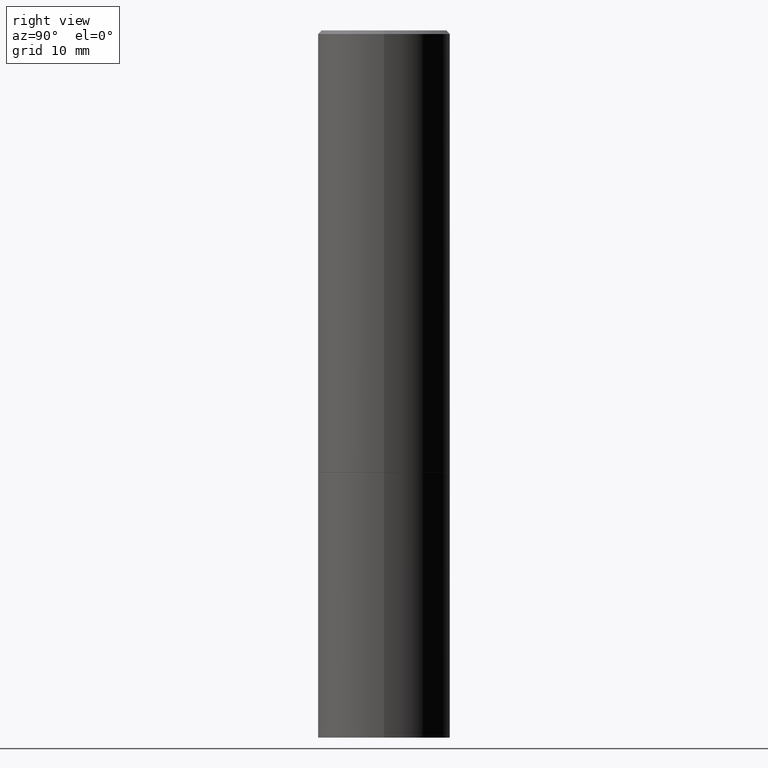
[diagram: clean part render]
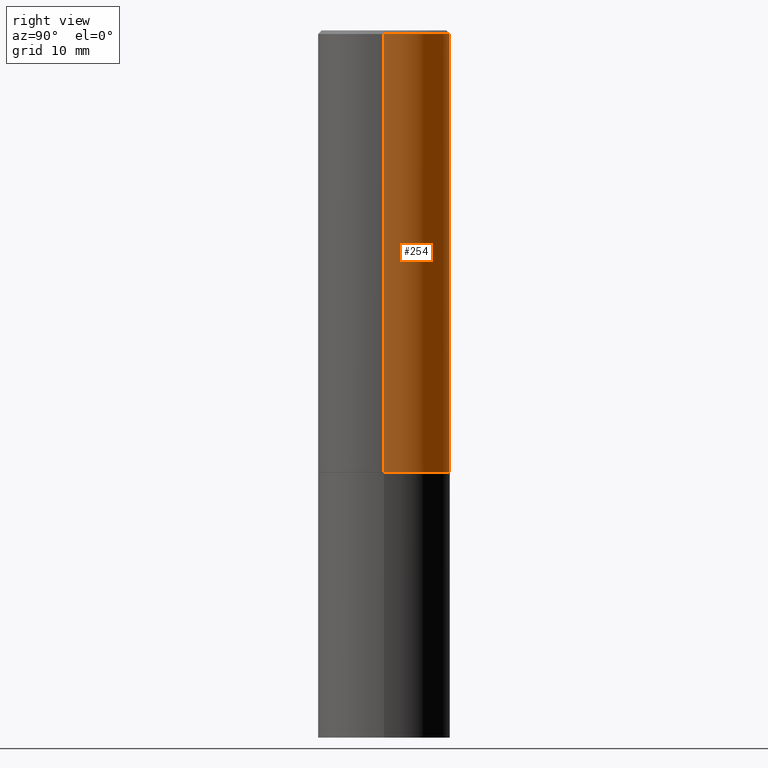
[diagram: same view with one face highlighted and labeled with its STEP entity id]
A machine part, right view. The second image highlights one B-rep face of the part: STEP entity #254.
In plain terms, the highlighted cylindrical surface (partial cylindrical patch) has radius 9.525 mm, axis along (-0, 0, 1).
Its self-contained STEP definition (entity closure, byte-faithful):
#4 = CARTESIAN_POINT ( 'NONE',  ( -0.3749999999999999445, -1.732985487172566723E-15, -2.499000000000000998 ) ) ;
#7 = DIRECTION ( 'NONE',  ( -2.445468806185136597E-29, 3.491481338843145583E-15, 1.000000000000000000 ) ) ;
#9 = EDGE_CURVE ( 'NONE', #67, #296, #132, .T. ) ;
#15 = VECTOR ( 'NONE', #269, 39.37007874015748143 ) ;
#37 = CIRCLE ( 'NONE', #226, 0.3750000000000000555 ) ;
#38 = VERTEX_POINT ( 'NONE', #202 ) ;
#40 = ORIENTED_EDGE ( 'NONE', *, *, #329, .F. ) ;
#57 = CIRCLE ( 'NONE', #107, 0.3749999999999996669 ) ;
#67 = VERTEX_POINT ( 'NONE', #4 ) ;
#79 = DIRECTION ( 'NONE',  ( 1.000000000000000000, -6.982962677686266711E-15, 0.000000000000000000 ) ) ;
#85 = DIRECTION ( 'NONE',  ( -2.445468806185136877E-29, 3.491481338843145188E-15, 1.000000000000000000 ) ) ;
#95 = ORIENTED_EDGE ( 'NONE', *, *, #9, .T. ) ;
#105 = DIRECTION ( 'NONE',  ( 1.000000000000000000, -6.982962677686264344E-15, 0.000000000000000000 ) ) ;
#107 = AXIS2_PLACEMENT_3D ( 'NONE', #163, #139, #79 ) ;
#109 = LINE ( 'NONE', #165, #15 ) ;
#132 = LINE ( 'NONE', #299, #137 ) ;
#137 = VECTOR ( 'NONE', #85, 39.37007874015748143 ) ;
#139 = DIRECTION ( 'NONE',  ( -2.445468806185136597E-29, 3.491481338843145583E-15, 1.000000000000000000 ) ) ;
#150 = CARTESIAN_POINT ( 'NONE',  ( 0.000000000000000000, 0.000000000000000000, 0.000000000000000000 ) ) ;
#154 = CARTESIAN_POINT ( 'NONE',  ( 0.3749999999999996669, -2.642516375941185662E-15, -0.02000000000000007674 ) ) ;
#163 = CARTESIAN_POINT ( 'NONE',  ( 4.890937612370292426E-31, -6.982962677686317493E-17, -0.02000000000000007674 ) ) ;
#165 = CARTESIAN_POINT ( 'NONE',  ( 0.3749999999999998335, -2.618611004132348439E-15, 1.828566290923475082E-29 ) ) ;
#181 = FACE_OUTER_BOUND ( 'NONE', #237, .T. ) ;
#192 = CARTESIAN_POINT ( 'NONE',  ( 6.111226546656659252E-29, -8.725211865769023513E-15, -2.499000000000000998 ) ) ;
#202 = CARTESIAN_POINT ( 'NONE',  ( 0.3750000000000000555, -1.134382286990137353E-14, -2.499000000000000998 ) ) ;
#215 = VERTEX_POINT ( 'NONE', #154 ) ;
#226 = AXIS2_PLACEMENT_3D ( 'NONE', #192, #246, #105 ) ;
#237 = EDGE_LOOP ( 'NONE', ( #366, #95, #289, #40 ) ) ;
#242 = DIRECTION ( 'NONE',  ( 1.000000000000000000, -6.982962677686265922E-15, 4.876176775795935793E-29 ) ) ;
#244 = AXIS2_PLACEMENT_3D ( 'NONE', #150, #7, #242 ) ;
#246 = DIRECTION ( 'NONE',  ( -2.445468806185136597E-29, 3.491481338843145583E-15, 1.000000000000000000 ) ) ;
#254 = ADVANCED_FACE ( 'NONE', ( #181 ), #288, .T. ) ;
#269 = DIRECTION ( 'NONE',  ( -2.445468806185136877E-29, 3.491481338843145188E-15, 1.000000000000000000 ) ) ;
#288 = CYLINDRICAL_SURFACE ( 'NONE', #244, 0.3749999999999998335 ) ;
#289 = ORIENTED_EDGE ( 'NONE', *, *, #316, .F. ) ;
#296 = VERTEX_POINT ( 'NONE', #337 ) ;
#299 = CARTESIAN_POINT ( 'NONE',  ( -0.3749999999999998335, 2.664535259100374514E-15, -1.844600658845588757E-29 ) ) ;
#316 = EDGE_CURVE ( 'NONE', #215, #296, #57, .T. ) ;
#329 = EDGE_CURVE ( 'NONE', #38, #215, #109, .T. ) ;
#337 = CARTESIAN_POINT ( 'NONE',  ( -0.3749999999999996669, 2.548781377355484352E-15, -0.02000000000000007674 ) ) ;
#360 = EDGE_CURVE ( 'NONE', #38, #67, #37, .T. ) ;
#366 = ORIENTED_EDGE ( 'NONE', *, *, #360, .T. ) ;